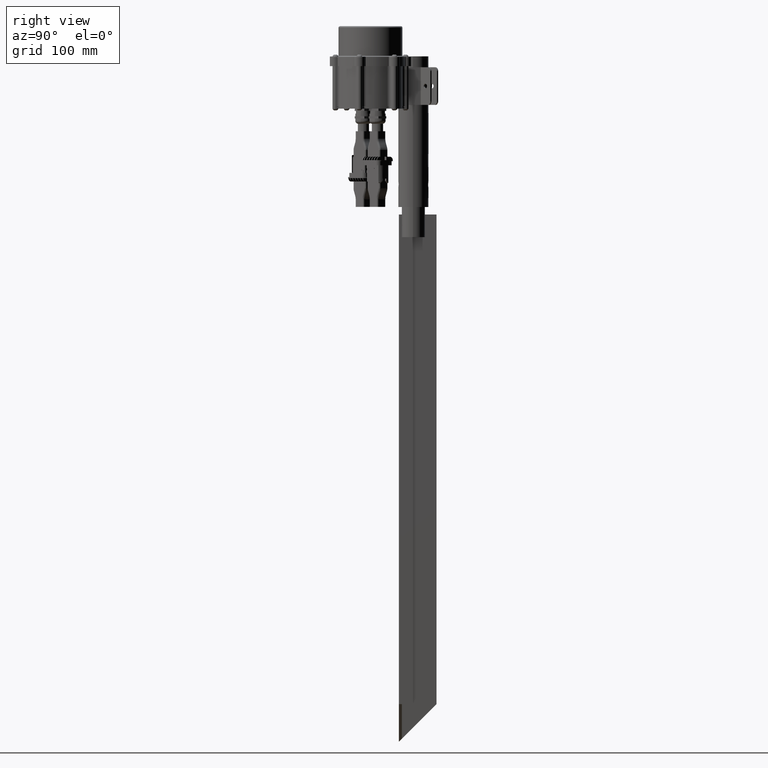
[diagram: clean part render]
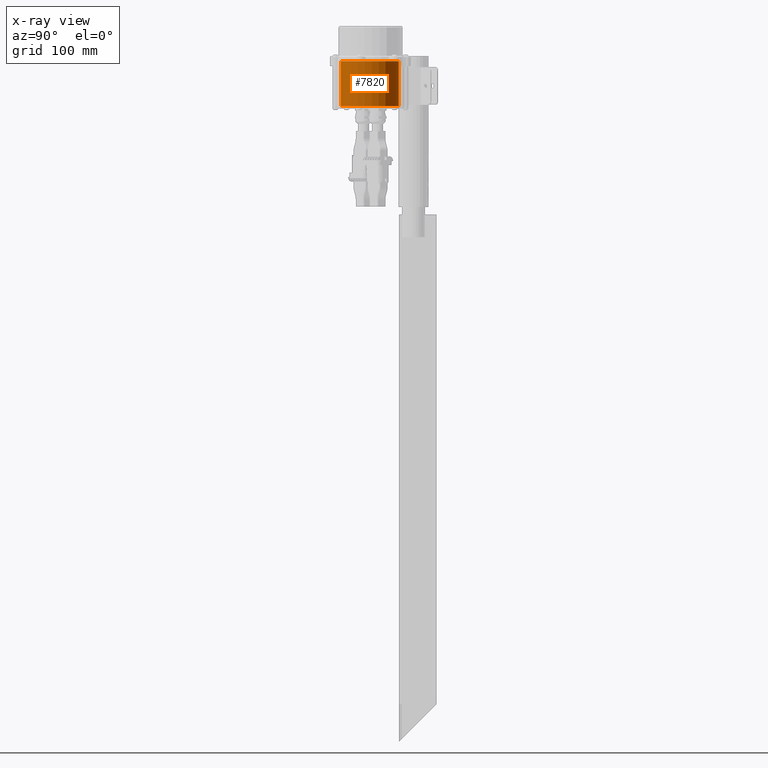
[diagram: x-ray — body ghosted, one internal face saturated and labeled with its STEP entity id]
A machine part, right view, then the same camera in x-ray: the body is ghosted and one INTERNAL B-rep face — a face not visible from any outside direction — is saturated and labeled: STEP entity #7820.
In plain terms, the highlighted cylindrical surface (edge-blend (fillet) strip) has radius 39.5 mm, axis along (0, -0, 1).
Its self-contained STEP definition (entity closure, byte-faithful):
#268 = DIRECTION ( 'NONE',  ( -0.0000000000000000000, 0.0000000000000000000, 1.000000000000000000 ) ) ;
#4337 = CARTESIAN_POINT ( 'NONE',  ( -39.49999999999491300, -1.198603244126902400E-012, 60.00000000000000000 ) ) ;
#5072 = CARTESIAN_POINT ( 'NONE',  ( 39.50000000000508700, -1.193765889270270400E-012, 60.00000000000000000 ) ) ;
#5311 = VERTEX_POINT ( 'NONE', #30514 ) ;
#6013 = DIRECTION ( 'NONE',  ( -0.0000000000000000000, -0.0000000000000000000, -1.000000000000000000 ) ) ;
#7463 = AXIS2_PLACEMENT_3D ( 'NONE', #32884, #35873, #12410 ) ;
#7675 = EDGE_LOOP ( 'NONE', ( #35657, #15499, #26621, #17402 ) ) ;
#7820 = ADVANCED_FACE ( 'NONE', ( #20878 ), #27761, .F. ) ;
#9163 = AXIS2_PLACEMENT_3D ( 'NONE', #17735, #268, #20700 ) ;
#9278 = VERTEX_POINT ( 'NONE', #37613 ) ;
#9569 = VERTEX_POINT ( 'NONE', #4337 ) ;
#10762 = CIRCLE ( 'NONE', #9163, 39.50000000000000000 ) ;
#12410 = DIRECTION ( 'NONE',  ( -1.000000000000000000, 0.0000000000000000000, 0.0000000000000000000 ) ) ;
#13846 = LINE ( 'NONE', #16005, #36286 ) ;
#15499 = ORIENTED_EDGE ( 'NONE', *, *, #34481, .T. ) ;
#15811 = CARTESIAN_POINT ( 'NONE',  ( 5.085898904018360800E-012, -1.198603244126902400E-012, 0.0000000000000000000 ) ) ;
#16005 = CARTESIAN_POINT ( 'NONE',  ( -39.49999999999491300, -1.198603244126902400E-012, 60.00000000000000000 ) ) ;
#16014 = EDGE_CURVE ( 'NONE', #9569, #23373, #10762, .T. ) ;
#17402 = ORIENTED_EDGE ( 'NONE', *, *, #30633, .F. ) ;
#17735 = CARTESIAN_POINT ( 'NONE',  ( 5.085898904018360800E-012, -1.198603244126902400E-012, 60.00000000000000000 ) ) ;
#18697 = DIRECTION ( 'NONE',  ( 1.000000000000000000, 0.0000000000000000000, 0.0000000000000000000 ) ) ;
#19319 = EDGE_CURVE ( 'NONE', #5311, #9278, #29304, .T. ) ;
#20700 = DIRECTION ( 'NONE',  ( 1.000000000000000000, 0.0000000000000000000, 0.0000000000000000000 ) ) ;
#20878 = FACE_OUTER_BOUND ( 'NONE', #7675, .T. ) ;
#23373 = VERTEX_POINT ( 'NONE', #5072 ) ;
#23567 = CARTESIAN_POINT ( 'NONE',  ( 39.50000000000508700, -1.193765889270270400E-012, 60.00000000000000000 ) ) ;
#26621 = ORIENTED_EDGE ( 'NONE', *, *, #19319, .F. ) ;
#27218 = VECTOR ( 'NONE', #6013, 1000.000000000000000 ) ;
#27761 = CYLINDRICAL_SURFACE ( 'NONE', #7463, 39.50000000000000000 ) ;
#28142 = LINE ( 'NONE', #23567, #27218 ) ;
#29304 = CIRCLE ( 'NONE', #31816, 39.50000000000000000 ) ;
#30514 = CARTESIAN_POINT ( 'NONE',  ( -39.49999999999491300, -1.198603244126902400E-012, 0.0000000000000000000 ) ) ;
#30633 = EDGE_CURVE ( 'NONE', #9569, #5311, #13846, .T. ) ;
#31816 = AXIS2_PLACEMENT_3D ( 'NONE', #15811, #36295, #18697 ) ;
#32884 = CARTESIAN_POINT ( 'NONE',  ( 5.085898904018360800E-012, -1.198603244126902400E-012, 60.00000000000000000 ) ) ;
#33673 = DIRECTION ( 'NONE',  ( -0.0000000000000000000, -0.0000000000000000000, -1.000000000000000000 ) ) ;
#34481 = EDGE_CURVE ( 'NONE', #23373, #9278, #28142, .T. ) ;
#35657 = ORIENTED_EDGE ( 'NONE', *, *, #16014, .T. ) ;
#35873 = DIRECTION ( 'NONE',  ( -0.0000000000000000000, -0.0000000000000000000, -1.000000000000000000 ) ) ;
#36286 = VECTOR ( 'NONE', #33673, 1000.000000000000000 ) ;
#36295 = DIRECTION ( 'NONE',  ( -0.0000000000000000000, 0.0000000000000000000, 1.000000000000000000 ) ) ;
#37613 = CARTESIAN_POINT ( 'NONE',  ( 39.50000000000508700, -1.193765889270270400E-012, 0.0000000000000000000 ) ) ;